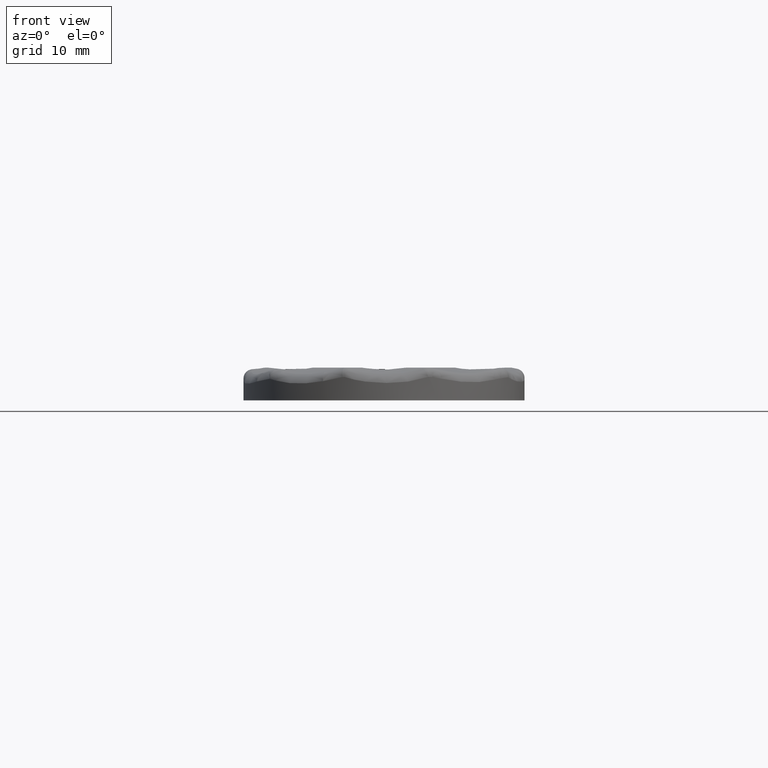
[diagram: clean part render]
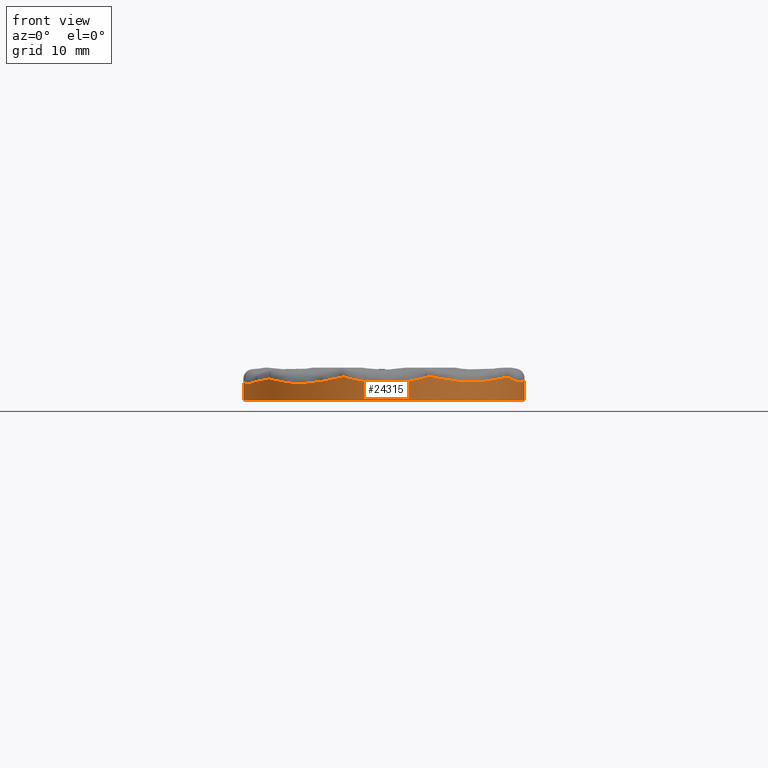
[diagram: same view with one face highlighted and labeled with its STEP entity id]
A machine part, front view. The second image highlights one B-rep face of the part: STEP entity #24315.
In plain terms, the highlighted cylindrical surface (partial cylindrical patch) has radius 15 mm, axis along (-0, -0, -1).
Its self-contained STEP definition (entity closure, byte-faithful):
#58 = CARTESIAN_POINT ( 'NONE',  ( 4.391756164210669100, -35.34688056548948500, 2.389297200870218700 ) ) ;
#150 = CARTESIAN_POINT ( 'NONE',  ( 2.585502599012234000, -35.77551385972555000, 2.011297802122911100 ) ) ;
#154 = CARTESIAN_POINT ( 'NONE',  ( 14.99451930562491400, -21.41065977208496600, 2.169530861364180800 ) ) ;
#243 = CARTESIAN_POINT ( 'NONE',  ( -1.869753270069671300, -35.88314109691457100, 1.991889715383481800 ) ) ;
#245 = CARTESIAN_POINT ( 'NONE',  ( 14.92765821382066000, -22.47158438995870000, 2.080296446699312800 ) ) ;
#316 = VERTEX_POINT ( 'NONE', #16557 ) ;
#521 = CARTESIAN_POINT ( 'NONE',  ( 10.16085508875856800, -32.03876460526588200, 1.953293007870319500 ) ) ;
#542 = B_SPLINE_CURVE_WITH_KNOTS ( 'NONE', 3,
 ( #11279, #25801, #17585, #5083 ),
 .UNSPECIFIED., .F., .F.,
 ( 4, 4 ),
 ( 0.0000000000000000000, 1.000000000000000000 ),
 .UNSPECIFIED. ) ;
#558 = VERTEX_POINT ( 'NONE', #4744 ) ;
#584 = DIRECTION ( 'NONE',  ( 1.000000000000000000, 0.0000000000000000000, 0.0000000000000000000 ) ) ;
#614 = CARTESIAN_POINT ( 'NONE',  ( 7.707988302024495500, -33.86806204666599700, 2.054306608164052900 ) ) ;
#798 = ORIENTED_EDGE ( 'NONE', *, *, #25485, .T. ) ;
#806 = CARTESIAN_POINT ( 'NONE',  ( 4.721249886231166900, -35.23761916584940200, 2.500000000000182500 ) ) ;
#833 = CARTESIAN_POINT ( 'NONE',  ( -5.350531576912102200, -35.01331225451782800, 2.294896441787574100 ) ) ;
#868 = B_SPLINE_CURVE_WITH_KNOTS ( 'NONE', 3,
 ( #12888, #2525, #19192, #6682, #21283, #8794, #23393, #10878, #25495, #12981, #521, #15082, #2621, #17174, #4695, #19271, #6775, #21366, #8875, #23485, #10968, #25577, #13064, #614, #15173, #2707, #17269, #4786, #19360 ),
 .UNSPECIFIED., .F., .F.,
 ( 4, 2, 1, 1, 2, 2, 2, 1, 2, 2, 2, 1, 1, 1, 1, 2, 2, 4 ),
 ( 0.0000000000000000000, 0.1249999999999973900, 0.1874999999999963100, 0.2187499999999950300, 0.2343749999999946200, 0.2499999999999942000, 0.3749999999999875100, 0.4374999999999830100, 0.4687499999999816300, 0.4999999999999802400, 0.6249999999999742400, 0.6874999999999709100, 0.7187499999999702500, 0.7343749999999702500, 0.7421874999999702500, 0.7460937499999703600, 0.7499999999999703600, 1.000000000000000000 ),
 .UNSPECIFIED. ) ;
#872 = CARTESIAN_POINT ( 'NONE',  ( 14.09589986310396300, -26.12895136691170000, 2.067874186115390900 ) ) ;
#899 = CARTESIAN_POINT ( 'NONE',  ( 5.525348201035853900, -34.95002622144694000, 2.432568754641365700 ) ) ;
#941 = ORIENTED_EDGE ( 'NONE', *, *, #24477, .T. ) ;
#1051 = VERTEX_POINT ( 'NONE', #14128 ) ;
#1158 = CARTESIAN_POINT ( 'NONE',  ( -14.99999999999999800, -21.01810573097073800, 2.111576845306840400 ) ) ;
#1383 = CARTESIAN_POINT ( 'NONE',  ( -14.88293898062147300, -23.19650324315727000, 1.796591670863132900 ) ) ;
#1510 = B_SPLINE_CURVE_WITH_KNOTS ( 'NONE', 3,
 ( #23037, #2054, #12618, #154, #14719, #2239, #16793, #4331, #18921, #6398, #21000, #8519, #23125, #10611, #25224, #12706, #245, #14809, #2333, #16891, #4422, #19011, #6494, #21098, #8603, #23215, #10692 ),
 .UNSPECIFIED., .F., .F.,
 ( 4, 2, 2, 1, 1, 1, 2, 2, 2, 2, 1, 1, 1, 1, 2, 2, 4 ),
 ( 0.0000000000000000000, 0.1250000000002008700, 0.1875000000003013100, 0.2187500000003500300, 0.2343750000003743400, 0.2421875000003851900, 0.2460937500003905500, 0.2500000000003959100, 0.3750000000005450100, 0.4375000000006212300, 0.4687500000006615800, 0.4843750000006845100, 0.4921875000006925000, 0.4960937500006965000, 0.4980468750006946100, 0.5000000000006927800, 1.000000000000000000 ),
 .UNSPECIFIED. ) ;
#1516 = ORIENTED_EDGE ( 'NONE', *, *, #7218, .F. ) ;
#1617 = CARTESIAN_POINT ( 'NONE',  ( -12.73650188892505100, -28.92491208944524700, 2.254854348927719500 ) ) ;
#1737 = CIRCLE ( 'NONE', #16011, 15.00000000000000000 ) ;
#2054 = CARTESIAN_POINT ( 'NONE',  ( 15.00000000000000400, -21.09994628260636100, 2.194067513909741000 ) ) ;
#2136 = CARTESIAN_POINT ( 'NONE',  ( 4.721249886231166900, -35.23761916584940200, 2.500000000000182500 ) ) ;
#2209 = ORIENTED_EDGE ( 'NONE', *, *, #3965, .F. ) ;
#2236 = CARTESIAN_POINT ( 'NONE',  ( 2.169102099189840900, -35.84699864253492100, 1.954326205714275200 ) ) ;
#2239 = CARTESIAN_POINT ( 'NONE',  ( 14.98848457488393600, -21.58877452065889500, 2.154848348133423300 ) ) ;
#2260 = CARTESIAN_POINT ( 'NONE',  ( -15.00000000000000000, -20.99999999999999600, 3.500000000000000000 ) ) ;
#2330 = CARTESIAN_POINT ( 'NONE',  ( -1.986196901896455800, -35.86793775542774700, 2.007208754433895700 ) ) ;
#2333 = CARTESIAN_POINT ( 'NONE',  ( 14.92143875734361900, -22.53322500782907400, 2.075233858706312200 ) ) ;
#2340 = CARTESIAN_POINT ( 'NONE',  ( 6.446359800261056900E-017, -20.99999999999999600, 0.0000000000000000000 ) ) ;
#2436 = AXIS2_PLACEMENT_3D ( 'NONE', #22406, #9896, #24509 ) ;
#2460 = CARTESIAN_POINT ( 'NONE',  ( -15.00000000000000000, -20.99999999999999300, 2.115071294752435700 ) ) ;
#2525 = CARTESIAN_POINT ( 'NONE',  ( 11.65606841830841300, -30.44628725381120700, 2.190549781355268800 ) ) ;
#2532 = EDGE_LOOP ( 'NONE', ( #9932, #2209, #26226, #1516, #798, #15864, #9393, #9709, #13942, #16125, #22070, #9142, #24332, #23311, #17206, #941, #4449, #10261, #23581 ) ) ;
#2621 = CARTESIAN_POINT ( 'NONE',  ( 9.633474487431001900, -32.49945701723071100, 1.929009648984124400 ) ) ;
#2707 = CARTESIAN_POINT ( 'NONE',  ( 7.680043227775240800, -33.88475866731738500, 2.058045692437292700 ) ) ;
#2713 = CARTESIAN_POINT ( 'NONE',  ( 14.60080934720015700, -24.45620135992820800, 1.972852358182027200 ) ) ;
#2936 = CARTESIAN_POINT ( 'NONE',  ( -5.433052791136341300, -34.98149373764073300, 2.276939094323258600 ) ) ;
#2971 = CARTESIAN_POINT ( 'NONE',  ( 13.54206205355036700, -27.48450609299821000, 2.286685993808896400 ) ) ;
#3075 = VERTEX_POINT ( 'NONE', #6933 ) ;
#3252 = CARTESIAN_POINT ( 'NONE',  ( -15.00000000000000000, -20.99999999999999300, 2.115071294752435700 ) ) ;
#3369 = CARTESIAN_POINT ( 'NONE',  ( -13.78282190376557100, -26.94219682396643400, 1.935640342650539700 ) ) ;
#3471 = CARTESIAN_POINT ( 'NONE',  ( -14.99990160179987500, -21.05433172481634700, 2.104598916676048600 ) ) ;
#3699 = CARTESIAN_POINT ( 'NONE',  ( -12.89267817341488600, -28.66683286593598400, 2.224322091398949700 ) ) ;
#3829 = CARTESIAN_POINT ( 'NONE',  ( 12.54616511087778900, -29.22155661957510000, 2.366891553618791100 ) ) ;
#3965 = EDGE_CURVE ( 'NONE', #12651, #26488, #10999, .T. ) ;
#4010 = CARTESIAN_POINT ( 'NONE',  ( 15.00000000000000000, -20.99999999999999600, 3.500000000000000000 ) ) ;
#4326 = CARTESIAN_POINT ( 'NONE',  ( 1.223912457576096500, -35.95120725299293000, 1.880217438795275900 ) ) ;
#4331 = CARTESIAN_POINT ( 'NONE',  ( 14.98308821663155000, -21.71256162000644700, 2.144452204763895900 ) ) ;
#4419 = CARTESIAN_POINT ( 'NONE',  ( -2.829729462118146400, -35.75261977651587100, 2.122995637203967300 ) ) ;
#4422 = CARTESIAN_POINT ( 'NONE',  ( 14.91935075546652100, -22.55337658147622900, 2.073603574295036300 ) ) ;
#4429 = DIRECTION ( 'NONE',  ( -1.000000000000000000, 0.0000000000000000000, 0.0000000000000000000 ) ) ;
#4449 = ORIENTED_EDGE ( 'NONE', *, *, #13362, .F. ) ;
#4474 = CARTESIAN_POINT ( 'NONE',  ( 12.25716292241046000, -29.65043722277376000, 2.316784746333686600 ) ) ;
#4475 = CIRCLE ( 'NONE', #2436, 15.00000000000000000 ) ;
#4695 = CARTESIAN_POINT ( 'NONE',  ( 9.336198973110960300, -32.74058026052321700, 1.928296646503005100 ) ) ;
#4744 = CARTESIAN_POINT ( 'NONE',  ( 15.00000000000000000, -20.99999999999999600, 0.0000000000000000000 ) ) ;
#4776 = VERTEX_POINT ( 'NONE', #10804 ) ;
#4786 = CARTESIAN_POINT ( 'NONE',  ( 6.667113564892466600, -34.45515436453548800, 2.213322741510243700 ) ) ;
#4808 = EDGE_CURVE ( 'NONE', #24409, #10931, #18115, .T. ) ;
#5008 = CARTESIAN_POINT ( 'NONE',  ( -5.459882247093895000, -34.97103065166621900, 2.271133986806960900 ) ) ;
#5048 = CARTESIAN_POINT ( 'NONE',  ( 12.40391048045073900, -29.43463127783096000, 2.341186222243335700 ) ) ;
#5083 = CARTESIAN_POINT ( 'NONE',  ( -12.22521563884109200, -29.69161104651742300, 2.303129838536489300 ) ) ;
#5326 = CARTESIAN_POINT ( 'NONE',  ( -14.99996721851295500, -21.03621626385889700, 2.108085817733951200 ) ) ;
#5441 = CARTESIAN_POINT ( 'NONE',  ( 14.67514234148945800, -24.10486670519416900, 1.982752837086937800 ) ) ;
#5466 = CARTESIAN_POINT ( 'NONE',  ( -13.55812357080809600, -27.41695295593615700, 2.021765899111449100 ) ) ;
#5546 = CARTESIAN_POINT ( 'NONE',  ( 12.49946680405296800, -29.29280330827061400, 2.357755775602309500 ) ) ;
#5681 = CARTESIAN_POINT ( 'NONE',  ( -12.22521563884109200, -29.69161104651742300, 2.303129838536489300 ) ) ;
#5782 = CARTESIAN_POINT ( 'NONE',  ( -12.92967948496484200, -28.60417264777800700, 2.216183267418431400 ) ) ;
#6298 = CARTESIAN_POINT ( 'NONE',  ( 4.044825225536929900, -35.44924326181590900, 2.292648475504180300 ) ) ;
#6394 = CARTESIAN_POINT ( 'NONE',  ( 0.6448920047982514800, -35.98738396643594200, 1.859411803097849000 ) ) ;
#6398 = CARTESIAN_POINT ( 'NONE',  ( 14.98063324562427200, -21.76200559437848300, 2.140258188268050300 ) ) ;
#6492 = CARTESIAN_POINT ( 'NONE',  ( -4.239279147855849100, -35.38848540696881900, 2.500000000000000000 ) ) ;
#6494 = CARTESIAN_POINT ( 'NONE',  ( 14.91888502530654900, -22.55784158312071200, 2.073244514599657400 ) ) ;
#6562 = CYLINDRICAL_SURFACE ( 'NONE', #25825, 15.00000000000000000 ) ;
#6682 = CARTESIAN_POINT ( 'NONE',  ( 11.15072404665665600, -31.03420475431216000, 2.087632076368820300 ) ) ;
#6720 = CARTESIAN_POINT ( 'NONE',  ( -7.414611908823559400, -34.07873151630632000, 1.879935160685167300 ) ) ;
#6742 = EDGE_CURVE ( 'NONE', #24515, #26433, #542, .T. ) ;
#6775 = CARTESIAN_POINT ( 'NONE',  ( 8.983108858555366900, -33.01629584445319000, 1.935199480433659400 ) ) ;
#6816 = CARTESIAN_POINT ( 'NONE',  ( -6.500101491884342900, -34.51845703455845900, 2.056498278243275000 ) ) ;
#6920 = DIRECTION ( 'NONE',  ( -1.000000000000000000, 0.0000000000000000000, 0.0000000000000000000 ) ) ;
#6933 = CARTESIAN_POINT ( 'NONE',  ( 11.84639931462455600, -30.20124031196135700, 2.231366022347016200 ) ) ;
#7008 = CARTESIAN_POINT ( 'NONE',  ( -4.690663122259700800, -35.25077171198239500, 2.439050933442414000 ) ) ;
#7093 = CARTESIAN_POINT ( 'NONE',  ( -5.465814997458240400, -34.96871032045517300, 2.269853477426012400 ) ) ;
#7218 = EDGE_CURVE ( 'NONE', #4776, #13151, #4475, .T. ) ;
#7224 = EDGE_CURVE ( 'NONE', #26433, #316, #20734, .T. ) ;
#7262 = B_SPLINE_CURVE_WITH_KNOTS ( 'NONE', 3,
 ( #19049, #4474, #21144, #8650 ),
 .UNSPECIFIED., .F., .F.,
 ( 4, 4 ),
 ( 0.0000000000000000000, 1.000000000000000000 ),
 .UNSPECIFIED. ) ;
#7554 = CARTESIAN_POINT ( 'NONE',  ( 12.40391048045073900, -29.43463127783096000, 2.341186222243335700 ) ) ;
#7568 = CARTESIAN_POINT ( 'NONE',  ( -13.98729807413069200, -26.44563672648899900, 1.872698583777805800 ) ) ;
#7778 = LINE ( 'NONE', #4010, #12676 ) ;
#7887 = CARTESIAN_POINT ( 'NONE',  ( -12.94180603100325500, -28.58351397620545200, 2.213443941364128700 ) ) ;
#8198 = EDGE_CURVE ( 'NONE', #3075, #14099, #868, .T. ) ;
#8415 = CARTESIAN_POINT ( 'NONE',  ( 3.311814509980929500, -35.63112919893352900, 2.130972690741101100 ) ) ;
#8515 = CARTESIAN_POINT ( 'NONE',  ( -0.1353933810716324300, -36.00443036979560700, 1.858304203762553000 ) ) ;
#8519 = CARTESIAN_POINT ( 'NONE',  ( 14.97993392949692800, -21.77564175479969000, 2.139098636809083400 ) ) ;
#8603 = CARTESIAN_POINT ( 'NONE',  ( 14.85605080706011400, -23.15890101048696800, 2.025022477858388300 ) ) ;
#8650 = CARTESIAN_POINT ( 'NONE',  ( 11.84639931462455600, -30.20124031196135700, 2.231366022347016200 ) ) ;
#8794 = CARTESIAN_POINT ( 'NONE',  ( 10.80772486873073700, -31.40209471528193000, 2.030022773784195200 ) ) ;
#8875 = CARTESIAN_POINT ( 'NONE',  ( 8.352176500581659700, -33.46055588986916300, 1.980571745046117300 ) ) ;
#8912 = CARTESIAN_POINT ( 'NONE',  ( -8.329065675830882800, -33.52433748061347500, 1.796027669860222700 ) ) ;
#9093 = B_SPLINE_CURVE_WITH_KNOTS ( 'NONE', 3,
 ( #7554, #11744, #5546, #20137 ),
 .UNSPECIFIED., .F., .F.,
 ( 4, 4 ),
 ( 0.0000000000000000000, 1.000000000000000000 ),
 .UNSPECIFIED. ) ;
#9142 = ORIENTED_EDGE ( 'NONE', *, *, #10270, .T. ) ;
#9145 = CARTESIAN_POINT ( 'NONE',  ( 14.28925330032621800, -25.56855739104421900, 2.012695262929347100 ) ) ;
#9198 = CARTESIAN_POINT ( 'NONE',  ( -5.861249850996908400, -34.81390504154439500, 2.184587442289909200 ) ) ;
#9223 = CARTESIAN_POINT ( 'NONE',  ( -4.239279147855849100, -35.38848540696881900, 2.500000000000000000 ) ) ;
#9393 = ORIENTED_EDGE ( 'NONE', *, *, #6742, .T. ) ;
#9671 = CARTESIAN_POINT ( 'NONE',  ( -14.34075815422548000, -25.40687655029952600, 1.798978610605744200 ) ) ;
#9709 = ORIENTED_EDGE ( 'NONE', *, *, #7224, .T. ) ;
#9860 = VECTOR ( 'NONE', #12730, 1000.000000000000000 ) ;
#9896 = DIRECTION ( 'NONE',  ( 0.0000000000000000000, 0.0000000000000000000, 1.000000000000000000 ) ) ;
#9932 = ORIENTED_EDGE ( 'NONE', *, *, #10850, .T. ) ;
#9989 = CARTESIAN_POINT ( 'NONE',  ( -13.32698387102176900, -27.90531879457354900, 2.110360393792729100 ) ) ;
#10126 = CARTESIAN_POINT ( 'NONE',  ( -11.50449463771827200, -30.62531054723490300, 2.105847752335149500 ) ) ;
#10261 = ORIENTED_EDGE ( 'NONE', *, *, #13506, .T. ) ;
#10270 = EDGE_CURVE ( 'NONE', #18834, #558, #1737, .T. ) ;
#10511 = CARTESIAN_POINT ( 'NONE',  ( 6.025029843930161300, -34.73677601840223200, 2.335794348707547700 ) ) ;
#10517 = CARTESIAN_POINT ( 'NONE',  ( 2.880873929099559300, -35.72134087734196600, 2.055182110088678000 ) ) ;
#10608 = CARTESIAN_POINT ( 'NONE',  ( -1.093157174248589500, -35.96133358628726700, 1.910916292440860700 ) ) ;
#10611 = CARTESIAN_POINT ( 'NONE',  ( 14.95623462041902000, -22.15236630384501000, 2.107073554217638600 ) ) ;
#10692 = CARTESIAN_POINT ( 'NONE',  ( 14.67514234148945800, -24.10486670519416900, 1.982752837086937800 ) ) ;
#10804 = CARTESIAN_POINT ( 'NONE',  ( -4.409036055153183800, -35.33738097610053300, 2.499999542120261000 ) ) ;
#10850 = EDGE_CURVE ( 'NONE', #14099, #26488, #25365, .T. ) ;
#10878 = CARTESIAN_POINT ( 'NONE',  ( 10.67236559248103100, -31.54049865853288300, 2.010905900182471400 ) ) ;
#10931 = VERTEX_POINT ( 'NONE', #15718 ) ;
#10937 = EDGE_CURVE ( 'NONE', #15658, #1051, #24701, .T. ) ;
#10968 = CARTESIAN_POINT ( 'NONE',  ( 7.916497258013506200, -33.74129306866427700, 2.027581107782430600 ) ) ;
#10999 = CIRCLE ( 'NONE', #17562, 15.00000000000000000 ) ;
#11007 = CARTESIAN_POINT ( 'NONE',  ( -10.84775407141306400, -31.41026894274358100, 1.913857201806413700 ) ) ;
#11068 = EDGE_CURVE ( 'NONE', #15658, #18834, #20956, .T. ) ;
#11168 = CARTESIAN_POINT ( 'NONE',  ( 6.025029843930161300, -34.73677601840223200, 2.335794348707547700 ) ) ;
#11187 = CARTESIAN_POINT ( 'NONE',  ( -4.918319815969062400, -35.17198288060392000, 2.389355801276209900 ) ) ;
#11233 = CARTESIAN_POINT ( 'NONE',  ( 14.14008441807631800, -26.00613520264833400, 2.054002791938132500 ) ) ;
#11279 = CARTESIAN_POINT ( 'NONE',  ( -11.50449463771827200, -30.62531054723490300, 2.105847752335149500 ) ) ;
#11290 = CARTESIAN_POINT ( 'NONE',  ( -6.500101491884342900, -34.51845703455845900, 2.056498278243275000 ) ) ;
#11744 = CARTESIAN_POINT ( 'NONE',  ( 12.45205365372405900, -29.36383225984701200, 2.349191564731371300 ) ) ;
#11758 = CARTESIAN_POINT ( 'NONE',  ( -14.49309509517481800, -24.86911571360419500, 1.783853434258631400 ) ) ;
#12156 = CARTESIAN_POINT ( 'NONE',  ( 15.00000000000000000, -20.99999999999999300, 2.201307042172786900 ) ) ;
#12615 = CARTESIAN_POINT ( 'NONE',  ( 2.635073723809711900, -35.76675387410949700, 2.018328210034728600 ) ) ;
#12618 = CARTESIAN_POINT ( 'NONE',  ( 14.99902416114417600, -21.21512051060246800, 2.185218527674708700 ) ) ;
#12651 = VERTEX_POINT ( 'NONE', #806 ) ;
#12676 = VECTOR ( 'NONE', #16462, 1000.000000000000000 ) ;
#12705 = CARTESIAN_POINT ( 'NONE',  ( -1.706249742858176200, -35.90316216413922500, 1.971605475045759200 ) ) ;
#12706 = CARTESIAN_POINT ( 'NONE',  ( 14.93439226566504600, -22.40217299821189200, 2.086061612395201200 ) ) ;
#12730 = DIRECTION ( 'NONE',  ( -0.0000000000000000000, -0.0000000000000000000, -1.000000000000000000 ) ) ;
#12888 = CARTESIAN_POINT ( 'NONE',  ( 11.84639931462455600, -30.20124031196135700, 2.231366022347016200 ) ) ;
#12981 = CARTESIAN_POINT ( 'NONE',  ( 10.39144287512777800, -31.82222575454721200, 1.974163839108705700 ) ) ;
#13032 = DIRECTION ( 'NONE',  ( 0.0000000000000000000, 0.0000000000000000000, 1.000000000000000000 ) ) ;
#13064 = CARTESIAN_POINT ( 'NONE',  ( 7.734271998891308000, -33.85230587330915600, 2.050817560524713200 ) ) ;
#13151 = VERTEX_POINT ( 'NONE', #9223 ) ;
#13209 = DIRECTION ( 'NONE',  ( -0.0000000000000000000, -0.0000000000000000000, -1.000000000000000000 ) ) ;
#13316 = CARTESIAN_POINT ( 'NONE',  ( -5.257140787839409400, -35.04873320728412300, 2.315286889324857300 ) ) ;
#13353 = CARTESIAN_POINT ( 'NONE',  ( 14.10297825213507900, -26.10945067960492600, 2.065609673254285000 ) ) ;
#13362 = EDGE_CURVE ( 'NONE', #26042, #15811, #9093, .T. ) ;
#13378 = CARTESIAN_POINT ( 'NONE',  ( 5.804630361878041700, -34.83344451289991600, 2.377833537541878400 ) ) ;
#13426 = B_SPLINE_CURVE_WITH_KNOTS ( 'NONE', 3,
 ( #26705, #26443, #16302, #3829 ),
 .UNSPECIFIED., .F., .F.,
 ( 4, 4 ),
 ( 0.0000000000000000000, 1.000000000000000000 ),
 .UNSPECIFIED. ) ;
#13506 = EDGE_CURVE ( 'NONE', #26042, #3075, #7262, .T. ) ;
#13875 = CARTESIAN_POINT ( 'NONE',  ( -14.59618389553092800, -24.46007835717831100, 1.781546438971755000 ) ) ;
#13930 = B_SPLINE_CURVE_WITH_KNOTS ( 'NONE', 3,
 ( #21597, #7008, #11187, #25808, #13316, #833, #15397, #2936, #17501, #5008, #19594, #7093, #21691, #9198, #23809, #11290 ),
 .UNSPECIFIED., .F., .F.,
 ( 4, 2, 2, 1, 1, 1, 1, 2, 2, 4 ),
 ( 0.0000000000000000000, 0.2500000000000262600, 0.3750000000000408600, 0.4375000000000503500, 0.4687500000000521800, 0.4843750000000542300, 0.4921875000000540100, 0.4960937500000527900, 0.5000000000000515100, 1.000000000000000000 ),
 .UNSPECIFIED. ) ;
#13942 = ORIENTED_EDGE ( 'NONE', *, *, #19160, .T. ) ;
#13972 = CARTESIAN_POINT ( 'NONE',  ( 5.183504078068406100, -35.07591061798219600, 2.500000249634029900 ) ) ;
#14099 = VERTEX_POINT ( 'NONE', #10511 ) ;
#14102 = CARTESIAN_POINT ( 'NONE',  ( -12.64659301031873900, -29.06696240359256600, 2.268381027657353500 ) ) ;
#14128 = CARTESIAN_POINT ( 'NONE',  ( -14.99990160179987500, -21.05433172481634700, 2.104598916676048600 ) ) ;
#14716 = CARTESIAN_POINT ( 'NONE',  ( 2.558647495986929900, -35.78018482662786000, 2.007563708180124500 ) ) ;
#14719 = CARTESIAN_POINT ( 'NONE',  ( 14.99250650568933300, -21.47963509849315500, 2.163899274767676900 ) ) ;
#14806 = CARTESIAN_POINT ( 'NONE',  ( -1.939644020586556600, -35.87408257022191500, 2.001022529687703300 ) ) ;
#14809 = CARTESIAN_POINT ( 'NONE',  ( 14.92454649493851800, -22.50282742351099300, 2.077715908492443500 ) ) ;
#15082 = CARTESIAN_POINT ( 'NONE',  ( 9.810083893797649800, -32.34841746821808800, 1.934944481812839400 ) ) ;
#15173 = CARTESIAN_POINT ( 'NONE',  ( 7.690441856984111100, -33.87855615142238700, 2.056648787960796600 ) ) ;
#15397 = CARTESIAN_POINT ( 'NONE',  ( -5.392450612206491000, -34.99723732273825000, 2.285756274368143000 ) ) ;
#15416 = CARTESIAN_POINT ( 'NONE',  ( -6.500101491884342900, -34.51845703455845900, 2.056498278243275000 ) ) ;
#15431 = CARTESIAN_POINT ( 'NONE',  ( 13.83378345375525200, -26.84588333354896200, 2.152992994886404600 ) ) ;
#15461 = CARTESIAN_POINT ( 'NONE',  ( 5.183504078068406100, -35.07591061798219600, 2.500000249634029900 ) ) ;
#15658 = VERTEX_POINT ( 'NONE', #2460 ) ;
#15718 = CARTESIAN_POINT ( 'NONE',  ( 13.23087239265801100, -28.06710801736829500, 2.471533173762889400 ) ) ;
#15811 = VERTEX_POINT ( 'NONE', #24037 ) ;
#15864 = ORIENTED_EDGE ( 'NONE', *, *, #19366, .T. ) ;
#15947 = CARTESIAN_POINT ( 'NONE',  ( -14.99612142375170600, -22.09796321178761900, 1.903718599287106200 ) ) ;
#16011 = AXIS2_PLACEMENT_3D ( 'NONE', #2340, #16901, #4429 ) ;
#16125 = ORIENTED_EDGE ( 'NONE', *, *, #10937, .F. ) ;
#16179 = CARTESIAN_POINT ( 'NONE',  ( -12.84075126782016000, -28.75376920764181000, 2.235152898170626100 ) ) ;
#16302 = CARTESIAN_POINT ( 'NONE',  ( 12.75673286184094700, -28.90021310615291100, 2.393891257051642200 ) ) ;
#16462 = DIRECTION ( 'NONE',  ( 0.0000000000000000000, 0.0000000000000000000, 1.000000000000000000 ) ) ;
#16557 = CARTESIAN_POINT ( 'NONE',  ( -13.55812357080809600, -27.41695295593615700, 2.021765899111449100 ) ) ;
#16791 = CARTESIAN_POINT ( 'NONE',  ( 1.794977433623871500, -35.89712375312143400, 1.917009307231873000 ) ) ;
#16793 = CARTESIAN_POINT ( 'NONE',  ( 14.98622252430239000, -21.64476322888699800, 2.150171998131423600 ) ) ;
#16889 = CARTESIAN_POINT ( 'NONE',  ( -2.007780580843190300, -35.86504117486719400, 2.010121060269879600 ) ) ;
#16891 = CARTESIAN_POINT ( 'NONE',  ( 14.92002312059847700, -22.54691139801955700, 2.074124978343716600 ) ) ;
#16901 = DIRECTION ( 'NONE',  ( 0.0000000000000000000, 0.0000000000000000000, 1.000000000000000000 ) ) ;
#17174 = CARTESIAN_POINT ( 'NONE',  ( 9.455300317916723400, -32.64487578367882700, 1.927933961455448300 ) ) ;
#17206 = ORIENTED_EDGE ( 'NONE', *, *, #4808, .T. ) ;
#17269 = CARTESIAN_POINT ( 'NONE',  ( 7.213096715538828400, -34.16273253423824500, 2.121063021879012300 ) ) ;
#17400 = CARTESIAN_POINT ( 'NONE',  ( 6.446359800261056900E-017, -20.99999999999999600, 3.500000000000000000 ) ) ;
#17443 = CARTESIAN_POINT ( 'NONE',  ( 14.51427799019322700, -24.80286509385510400, 1.975210510968739500 ) ) ;
#17501 = CARTESIAN_POINT ( 'NONE',  ( -5.451283684315616700, -34.97438929710987300, 2.272992091453596600 ) ) ;
#17535 = CARTESIAN_POINT ( 'NONE',  ( 13.23087239265801100, -28.06710801736829500, 2.471533173762889400 ) ) ;
#17562 = AXIS2_PLACEMENT_3D ( 'NONE', #25552, #13032, #584 ) ;
#17585 = CARTESIAN_POINT ( 'NONE',  ( -12.05790976496412400, -29.92693570322254000, 2.264991272753435600 ) ) ;
#18115 = B_SPLINE_CURVE_WITH_KNOTS ( 'NONE', 3,
 ( #19544, #2713, #17443, #21636, #9145, #23758, #11233, #25842, #13353, #872, #15431, #2971, #17535 ),
 .UNSPECIFIED., .F., .F.,
 ( 4, 2, 1, 1, 1, 2, 2, 4 ),
 ( 0.0000000000000000000, 0.2500000000000020500, 0.3750000000000031100, 0.4375000000000026600, 0.4687500000000033900, 0.4843750000000036100, 0.5000000000000037700, 1.000000000000000000 ),
 .UNSPECIFIED. ) ;
#18195 = CARTESIAN_POINT ( 'NONE',  ( -15.00000000000000000, -20.99999999999999600, 0.0000000000000000000 ) ) ;
#18201 = CARTESIAN_POINT ( 'NONE',  ( -12.34566042918248700, -29.52219900924700000, 2.300028840507502000 ) ) ;
#18295 = CARTESIAN_POINT ( 'NONE',  ( -12.91858755250829400, -28.62302218436587300, 2.218661667664829600 ) ) ;
#18326 = FACE_OUTER_BOUND ( 'NONE', #2532, .T. ) ;
#18834 = VERTEX_POINT ( 'NONE', #18195 ) ;
#18908 = EDGE_CURVE ( 'NONE', #21027, #24409, #1510, .T. ) ;
#18920 = CARTESIAN_POINT ( 'NONE',  ( 1.031913980825803500, -35.96571807135929800, 1.871150729197577700 ) ) ;
#18921 = CARTESIAN_POINT ( 'NONE',  ( 14.98138995535636800, -21.74707963642490700, 2.141526295155496800 ) ) ;
#19007 = CARTESIAN_POINT ( 'NONE',  ( -3.566416398346449400, -35.58673094447220800, 2.285148469872251700 ) ) ;
#19011 = CARTESIAN_POINT ( 'NONE',  ( 14.91907028652804700, -22.55606638099146000, 2.073387194588304900 ) ) ;
#19049 = CARTESIAN_POINT ( 'NONE',  ( 12.40391048045073900, -29.43463127783096000, 2.341186222243335700 ) ) ;
#19160 = EDGE_CURVE ( 'NONE', #316, #1051, #26133, .T. ) ;
#19192 = CARTESIAN_POINT ( 'NONE',  ( 11.45746309347640600, -30.68618535473156300, 2.149362864037878600 ) ) ;
#19271 = CARTESIAN_POINT ( 'NONE',  ( 9.275015694270754500, -32.78895922177446200, 1.929048938204803300 ) ) ;
#19360 = CARTESIAN_POINT ( 'NONE',  ( 6.025029843930161300, -34.73677601840223200, 2.335794348707547700 ) ) ;
#19366 = EDGE_CURVE ( 'NONE', #21300, #24515, #22491, .T. ) ;
#19532 = EDGE_CURVE ( 'NONE', #558, #21027, #7778, .T. ) ;
#19544 = CARTESIAN_POINT ( 'NONE',  ( 14.67514234148945800, -24.10486670519416900, 1.982752837086937800 ) ) ;
#19594 = CARTESIAN_POINT ( 'NONE',  ( -5.463456652067045600, -34.96963288759641100, 2.270362384127301100 ) ) ;
#19921 = CARTESIAN_POINT ( 'NONE',  ( -14.99990160179987500, -21.05433172481634700, 2.104598916676048600 ) ) ;
#20137 = CARTESIAN_POINT ( 'NONE',  ( 12.54616511087778900, -29.22155661957510000, 2.366891553618791100 ) ) ;
#20373 = CARTESIAN_POINT ( 'NONE',  ( -12.93707136478060500, -28.59158993516573900, 2.214519332951865800 ) ) ;
#20734 = B_SPLINE_CURVE_WITH_KNOTS ( 'NONE', 3,
 ( #5681, #18201, #26584, #14102, #1617, #16179, #3699, #18295, #5782, #20373, #7887, #22505, #9989, #24597 ),
 .UNSPECIFIED., .F., .F.,
 ( 4, 2, 1, 1, 1, 1, 2, 2, 4 ),
 ( 0.0000000000000000000, 0.2499999999999503700, 0.3749999999999277800, 0.4374999999999148500, 0.4687499999999084100, 0.4843749999999072400, 0.4921874999999066900, 0.4999999999999060800, 1.000000000000000000 ),
 .UNSPECIFIED. ) ;
#20909 = CARTESIAN_POINT ( 'NONE',  ( 3.498325721094587500, -35.58756414331044500, 2.168756498101119600 ) ) ;
#20956 = LINE ( 'NONE', #2260, #9860 ) ;
#20997 = CARTESIAN_POINT ( 'NONE',  ( 0.4479097273213594200, -35.99457209788234700, 1.856744823081159400 ) ) ;
#21000 = CARTESIAN_POINT ( 'NONE',  ( 14.98012226540492400, -21.77198567298035700, 2.139409640203815400 ) ) ;
#21027 = VERTEX_POINT ( 'NONE', #12156 ) ;
#21098 = CARTESIAN_POINT ( 'NONE',  ( 14.91894707858074700, -22.55724872995943600, 2.073292013539753200 ) ) ;
#21144 = CARTESIAN_POINT ( 'NONE',  ( 12.07401532513564700, -29.90818958624442600, 2.280178013034899600 ) ) ;
#21283 = CARTESIAN_POINT ( 'NONE',  ( 10.99459285747116900, -31.20592281455637700, 2.059132397612637900 ) ) ;
#21300 = VERTEX_POINT ( 'NONE', #15416 ) ;
#21366 = CARTESIAN_POINT ( 'NONE',  ( 8.737952822837932800, -33.19612241622502300, 1.948387709255431600 ) ) ;
#21597 = CARTESIAN_POINT ( 'NONE',  ( -4.409036055153183800, -35.33738097610053300, 2.499999542120261000 ) ) ;
#21636 = CARTESIAN_POINT ( 'NONE',  ( 14.36714943108675000, -25.31468763058126100, 1.997135687686238700 ) ) ;
#21691 = CARTESIAN_POINT ( 'NONE',  ( -5.465065261191275800, -34.96900399344014000, 2.270015042813879400 ) ) ;
#21986 = CARTESIAN_POINT ( 'NONE',  ( -12.22521563884109200, -29.69161104651742300, 2.303129838536489300 ) ) ;
#22070 = ORIENTED_EDGE ( 'NONE', *, *, #11068, .T. ) ;
#22190 = CARTESIAN_POINT ( 'NONE',  ( -14.25701882536339400, -25.67036196735329800, 1.813061641850975300 ) ) ;
#22406 = CARTESIAN_POINT ( 'NONE',  ( 6.446359800261056900E-017, -20.99999999999999600, 2.499999999999999100 ) ) ;
#22491 = B_SPLINE_CURVE_WITH_KNOTS ( 'NONE', 3,
 ( #6816, #6720, #8912, #23522, #11007, #25614 ),
 .UNSPECIFIED., .F., .F.,
 ( 4, 2, 4 ),
 ( 0.0000000000000000000, 0.5000000000000000000, 1.000000000000000000 ),
 .UNSPECIFIED. ) ;
#22505 = CARTESIAN_POINT ( 'NONE',  ( -13.11425577148216700, -28.28897990659063000, 2.174051059766196400 ) ) ;
#22865 = B_SPLINE_CURVE_WITH_KNOTS ( 'NONE', 3,
 ( #2136, #58, #6298, #20909, #8415, #23031, #10517, #25135, #12615, #150, #14716, #2236, #16791, #4326, #18920, #6394, #20997, #8515, #23122, #10608, #25219, #12705, #243, #14806, #2330, #16889, #4419, #19007, #6492 ),
 .UNSPECIFIED., .F., .F.,
 ( 4, 2, 2, 1, 1, 2, 2, 2, 2, 2, 2, 1, 1, 1, 2, 2, 4 ),
 ( 0.0000000000000000000, 0.1250000000000025000, 0.1875000000000036900, 0.2187500000000041100, 0.2343750000000045500, 0.2421875000000046100, 0.2500000000000046600, 0.3750000000000066100, 0.4375000000000075500, 0.5000000000000084400, 0.6250000000000103300, 0.6875000000000112100, 0.7187500000000117700, 0.7343750000000119900, 0.7421875000000121000, 0.7500000000000119900, 1.000000000000000000 ),
 .UNSPECIFIED. ) ;
#23031 = CARTESIAN_POINT ( 'NONE',  ( 3.025595684552363700, -35.69201432750863700, 2.079567257362569000 ) ) ;
#23037 = CARTESIAN_POINT ( 'NONE',  ( 15.00000000000000000, -20.99999999999999300, 2.201307042172786900 ) ) ;
#23122 = CARTESIAN_POINT ( 'NONE',  ( -0.5210831804264149900, -35.99581453173487200, 1.871847071102478600 ) ) ;
#23125 = CARTESIAN_POINT ( 'NONE',  ( 14.96896310283064200, -21.98579076947185800, 2.121204060821758400 ) ) ;
#23215 = CARTESIAN_POINT ( 'NONE',  ( 14.76638371819184300, -23.67361463620808200, 1.994905358775778600 ) ) ;
#23311 = ORIENTED_EDGE ( 'NONE', *, *, #18908, .T. ) ;
#23393 = CARTESIAN_POINT ( 'NONE',  ( 10.72664138045172800, -31.48525936757345200, 2.018434363869244100 ) ) ;
#23485 = CARTESIAN_POINT ( 'NONE',  ( 8.154780454964020800, -33.59144282247815000, 1.999764186080967600 ) ) ;
#23522 = CARTESIAN_POINT ( 'NONE',  ( -10.08202569941128200, -32.16177056550679200, 1.813495075205671300 ) ) ;
#23581 = ORIENTED_EDGE ( 'NONE', *, *, #8198, .T. ) ;
#23758 = CARTESIAN_POINT ( 'NONE',  ( 14.19101505985545100, -25.86092958044587700, 2.038892827760600200 ) ) ;
#23809 = CARTESIAN_POINT ( 'NONE',  ( -6.204156455399971300, -34.66075676360667800, 2.113635930586848400 ) ) ;
#24037 = CARTESIAN_POINT ( 'NONE',  ( 12.54616511087778900, -29.22155661957510000, 2.366891553618791100 ) ) ;
#24271 = CARTESIAN_POINT ( 'NONE',  ( -14.45627269122710400, -25.00445454697297600, 1.786547987833463800 ) ) ;
#24315 = ADVANCED_FACE ( 'NONE', ( #18326 ), #6562, .T. ) ;
#24332 = ORIENTED_EDGE ( 'NONE', *, *, #19532, .T. ) ;
#24409 = VERTEX_POINT ( 'NONE', #5441 ) ;
#24477 = EDGE_CURVE ( 'NONE', #10931, #15811, #13426, .T. ) ;
#24509 = DIRECTION ( 'NONE',  ( -1.000000000000000000, -2.405483220021172400E-014, 0.0000000000000000000 ) ) ;
#24515 = VERTEX_POINT ( 'NONE', #10126 ) ;
#24597 = CARTESIAN_POINT ( 'NONE',  ( -13.55812357080809600, -27.41695295593615700, 2.021765899111449100 ) ) ;
#24701 = B_SPLINE_CURVE_WITH_KNOTS ( 'NONE', 3,
 ( #3252, #1158, #5326, #19921 ),
 .UNSPECIFIED., .F., .F.,
 ( 4, 4 ),
 ( 0.0000000000000000000, 1.000000000000000000 ),
 .UNSPECIFIED. ) ;
#25135 = CARTESIAN_POINT ( 'NONE',  ( 2.709231830764957700, -35.75345599003615900, 2.029038518079378000 ) ) ;
#25219 = CARTESIAN_POINT ( 'NONE',  ( -1.377581894471456800, -35.93870553007246100, 1.935139633192176200 ) ) ;
#25224 = CARTESIAN_POINT ( 'NONE',  ( 14.93956889073607300, -22.34666509896316500, 2.090710508568659700 ) ) ;
#25365 = B_SPLINE_CURVE_WITH_KNOTS ( 'NONE', 3,
 ( #11168, #13378, #899, #15461 ),
 .UNSPECIFIED., .F., .F.,
 ( 4, 4 ),
 ( 0.0000000000000000000, 1.000000000000000000 ),
 .UNSPECIFIED. ) ;
#25485 = EDGE_CURVE ( 'NONE', #4776, #21300, #13930, .T. ) ;
#25495 = CARTESIAN_POINT ( 'NONE',  ( 10.64605003526315800, -31.56708203033757700, 2.007361814851965900 ) ) ;
#25552 = CARTESIAN_POINT ( 'NONE',  ( 6.446359800261056900E-017, -20.99999999999999600, 2.500000000000000000 ) ) ;
#25577 = CARTESIAN_POINT ( 'NONE',  ( 7.795348957005524300, -33.81543743777928100, 2.042846003756695800 ) ) ;
#25614 = CARTESIAN_POINT ( 'NONE',  ( -11.50449463771827200, -30.62531054723490300, 2.105847752335149500 ) ) ;
#25801 = CARTESIAN_POINT ( 'NONE',  ( -11.82392853285676500, -30.24351242075450900, 2.199230577352687900 ) ) ;
#25808 = CARTESIAN_POINT ( 'NONE',  ( -5.182146724760957400, -35.07672182960649100, 2.331694004614274900 ) ) ;
#25825 = AXIS2_PLACEMENT_3D ( 'NONE', #17400, #13209, #6920 ) ;
#25842 = CARTESIAN_POINT ( 'NONE',  ( 14.11787186554149900, -26.06815309710174900, 2.060909458391769100 ) ) ;
#26042 = VERTEX_POINT ( 'NONE', #5048 ) ;
#26133 = B_SPLINE_CURVE_WITH_KNOTS ( 'NONE', 3,
 ( #5466, #3369, #7568, #22190, #9671, #24271, #11758, #26367, #13875, #1383, #15947, #3471 ),
 .UNSPECIFIED., .F., .F.,
 ( 4, 2, 2, 2, 2, 4 ),
 ( 0.0000000000000000000, 0.2499999999999998900, 0.3750000000000004400, 0.4375000000000005600, 0.5000000000000007800, 1.000000000000000000 ),
 .UNSPECIFIED. ) ;
#26226 = ORIENTED_EDGE ( 'NONE', *, *, #26228, .T. ) ;
#26228 = EDGE_CURVE ( 'NONE', #12651, #13151, #22865, .T. ) ;
#26367 = CARTESIAN_POINT ( 'NONE',  ( -14.56323447362635000, -24.59611783861710800, 1.781362301807489300 ) ) ;
#26433 = VERTEX_POINT ( 'NONE', #21986 ) ;
#26443 = CARTESIAN_POINT ( 'NONE',  ( 12.99015298826925700, -28.51777719394010500, 2.428771586070157100 ) ) ;
#26488 = VERTEX_POINT ( 'NONE', #13972 ) ;
#26584 = CARTESIAN_POINT ( 'NONE',  ( -12.46636157801412100, -29.34497560000560400, 2.290954013033745400 ) ) ;
#26705 = CARTESIAN_POINT ( 'NONE',  ( 13.23087239265801100, -28.06710801736829500, 2.471533173762889400 ) ) ;